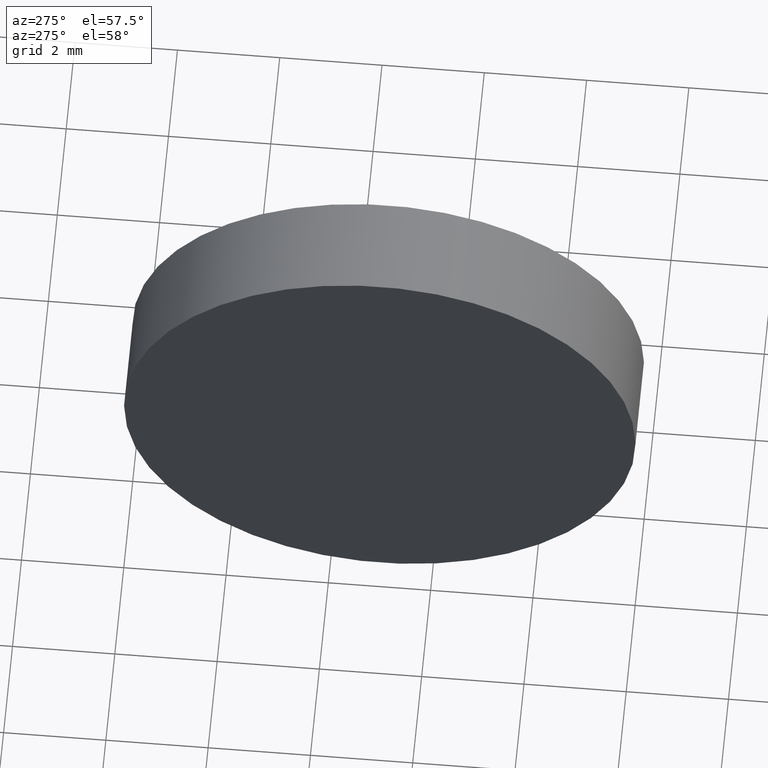
[diagram: clean part render]
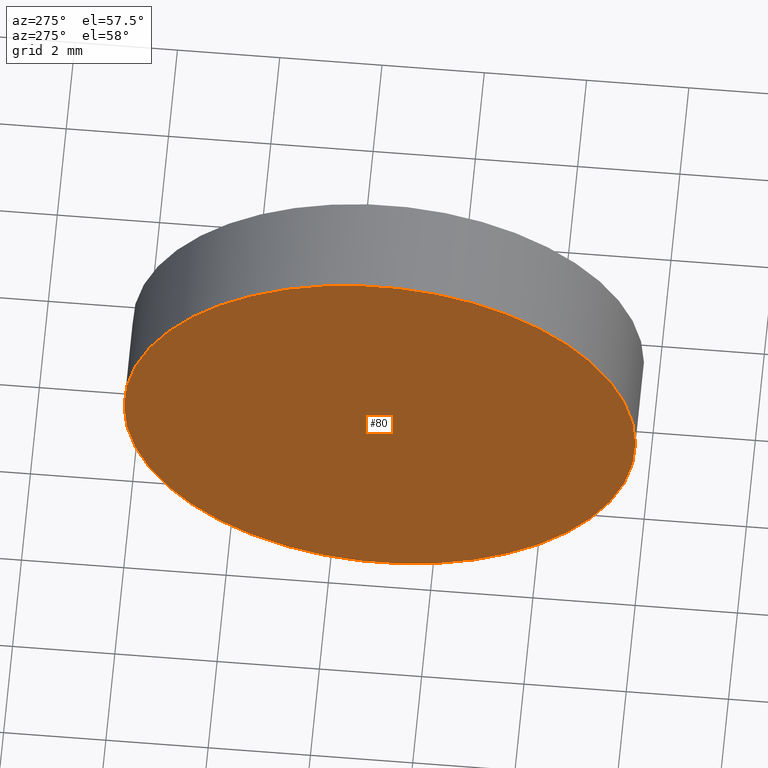
[diagram: same view with one face highlighted and labeled with its STEP entity id]
A machine part, auxiliary view. The second image highlights one B-rep face of the part: STEP entity #80.
In plain terms, the highlighted planar face has unit normal (1, -0, 0).
Its self-contained STEP definition (entity closure, byte-faithful):
#2 = CARTESIAN_POINT ( 'NONE',  ( 22.42423205362066000, 18.03112609140304200, 6.123233995736768300E-016 ) ) ;
#3 = DIRECTION ( 'NONE',  ( 1.000000000000000000, -3.159171411554934600E-016, 0.0000000000000000000 ) ) ;
#6 = FACE_OUTER_BOUND ( 'NONE', #15, .T. ) ;
#9 = VERTEX_POINT ( 'NONE', #2 ) ;
#11 = DIRECTION ( 'NONE',  ( -1.000000000000000000, 3.159171411554934600E-016, -0.0000000000000000000 ) ) ;
#15 = EDGE_LOOP ( 'NONE', ( #147, #135 ) ) ;
#24 = EDGE_CURVE ( 'NONE', #114, #9, #150, .T. ) ;
#25 = CARTESIAN_POINT ( 'NONE',  ( 22.42423205362066000, 13.03112609140304200, 0.0000000000000000000 ) ) ;
#28 = CARTESIAN_POINT ( 'NONE',  ( 22.42423205362066000, 13.03112609140304200, 0.0000000000000000000 ) ) ;
#29 = PLANE ( 'NONE',  #82 ) ;
#30 = DIRECTION ( 'NONE',  ( -1.000000000000000000, 3.159171411554934600E-016, -0.0000000000000000000 ) ) ;
#59 = AXIS2_PLACEMENT_3D ( 'NONE', #25, #11, #120 ) ;
#75 = DIRECTION ( 'NONE',  ( 0.0000000000000000000, -1.000000000000000000, 0.0000000000000000000 ) ) ;
#80 = ADVANCED_FACE ( 'NONE', ( #6 ), #29, .F. ) ;
#82 = AXIS2_PLACEMENT_3D ( 'NONE', #159, #3, #137 ) ;
#114 = VERTEX_POINT ( 'NONE', #139 ) ;
#116 = CIRCLE ( 'NONE', #127, 5.000000000000000900 ) ;
#120 = DIRECTION ( 'NONE',  ( 0.0000000000000000000, -1.000000000000000000, 0.0000000000000000000 ) ) ;
#127 = AXIS2_PLACEMENT_3D ( 'NONE', #28, #30, #75 ) ;
#135 = ORIENTED_EDGE ( 'NONE', *, *, #151, .T. ) ;
#137 = DIRECTION ( 'NONE',  ( 3.159171411554934600E-016, 1.000000000000000000, 0.0000000000000000000 ) ) ;
#139 = CARTESIAN_POINT ( 'NONE',  ( 22.42423205362066000, 8.031126091403040200, 0.0000000000000000000 ) ) ;
#147 = ORIENTED_EDGE ( 'NONE', *, *, #24, .T. ) ;
#150 = CIRCLE ( 'NONE', #59, 5.000000000000000900 ) ;
#151 = EDGE_CURVE ( 'NONE', #9, #114, #116, .T. ) ;
#159 = CARTESIAN_POINT ( 'NONE',  ( 22.42423205362066000, 13.03112609140304200, 0.0000000000000000000 ) ) ;